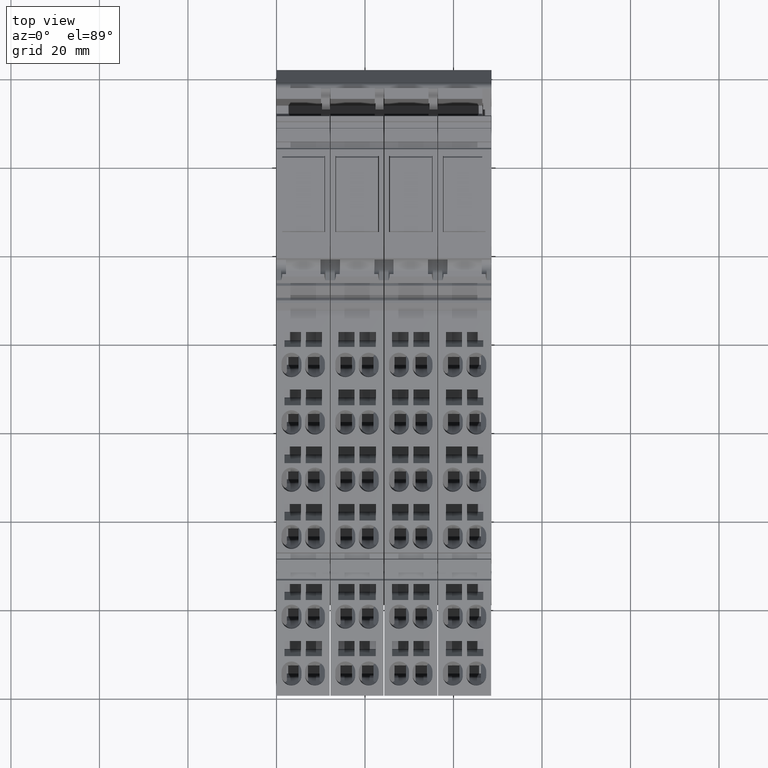
[diagram: clean part render]
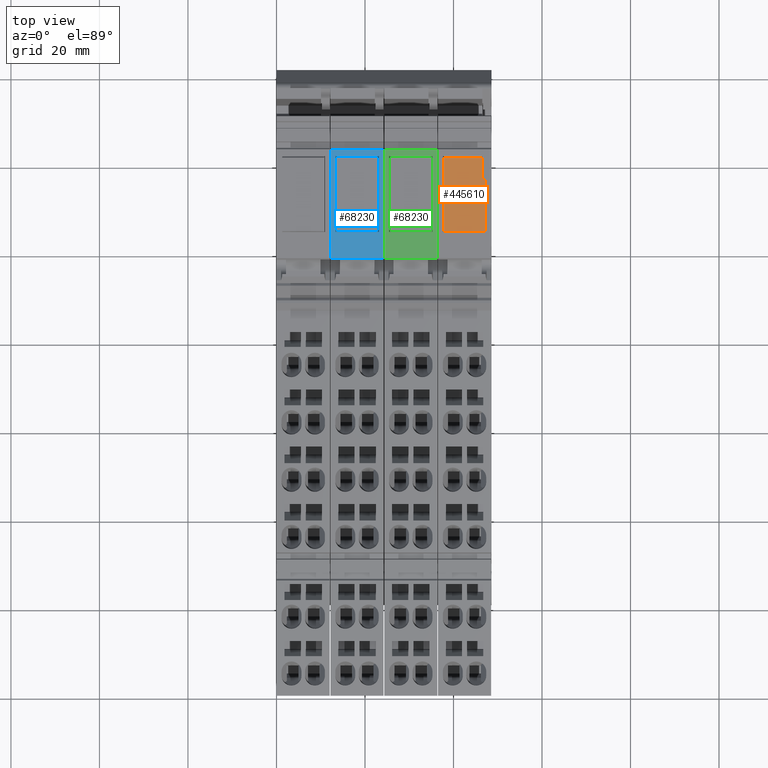
[diagram: same view with three faces highlighted in distinct colors, each labeled with its STEP entity id]
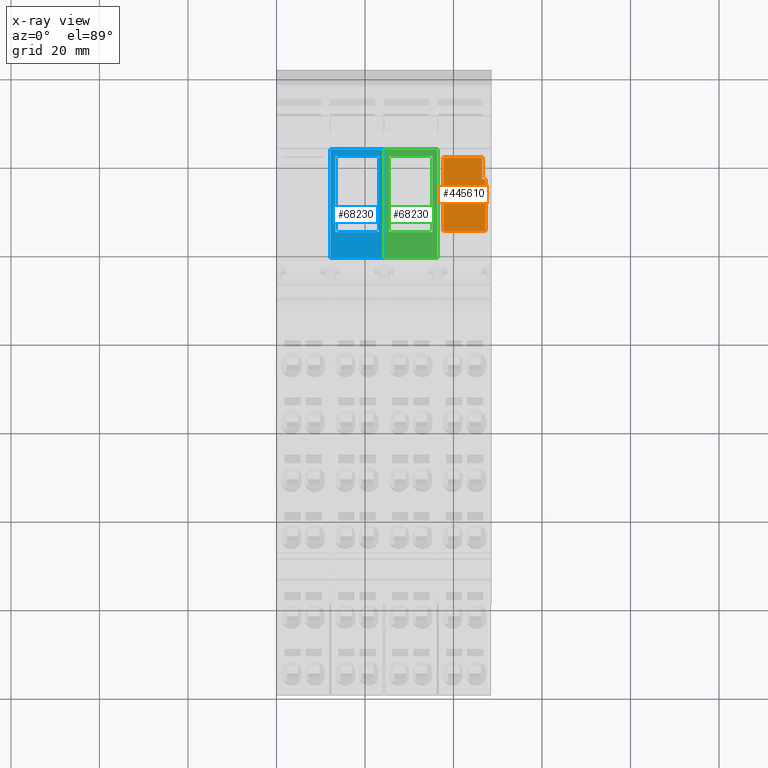
[diagram: x-ray of the same camera — body ghosted, the three highlighted faces saturated]
A machine part, top view with three faces highlighted in distinct colors.
The next image is the same camera in x-ray (body ghosted, the three faces saturated) — at least one of them is partly hidden behind the body in this view.
Their STEP definitions:

[orange] entity #445610 — the highlighted planar face has unit normal (0, 0, 1).
#444710=CARTESIAN_POINT('',(106.891351313916,84.4562740524357,
-9.59999999999789));
#444720=VERTEX_POINT('',#444710);
#444750=CARTESIAN_POINT('',(90.426738,84.4562740524359,-9.59999999999789
));
#444760=DIRECTION('',(-1.,1.05193631583234E-14,0.));
#444770=VECTOR('',#444760,1.);
#444780=LINE('',#444750,#444770);
#444790=CARTESIAN_POINT('',(90.2913513139157,84.4562740524359,
-9.59999999999789));
#444800=VERTEX_POINT('',#444790);
#444810=EDGE_CURVE('',#444720,#444800,#444780,.T.);
#445150=CARTESIAN_POINT('',(90.5147590000011,84.4562740524359,
-4.71143400000001));
#445160=DIRECTION('',(1.05193631583234E-14,1.,-0.));
#445170=DIRECTION('',(-1.,1.05193631583234E-14,0.));
#445180=AXIS2_PLACEMENT_3D('',#445150,#445160,#445170);
#445190=PLANE('',#445180);
#445200=ORIENTED_EDGE('',*,*,#444810,.T.);
#445210=CARTESIAN_POINT('',(106.891351313916,84.4562740524357,-0.25));
#445220=DIRECTION('',(0.,0.,1.));
#445230=VECTOR('',#445220,1.);
#445240=LINE('',#445210,#445230);
#445250=CARTESIAN_POINT('',(106.891351313916,84.4562740524357,
-0.850000000000001));
#445260=VERTEX_POINT('',#445250);
#445270=EDGE_CURVE('',#444720,#445260,#445240,.T.);
#445280=ORIENTED_EDGE('',*,*,#445270,.F.);
#445290=CARTESIAN_POINT('',(90.426738,84.4562740524359,
-0.850000000000001));
#445300=DIRECTION('',(1.,-1.05193631583234E-14,0.));
#445310=VECTOR('',#445300,1.);
#445320=LINE('',#445290,#445310);
#445330=CARTESIAN_POINT('',(101.991351313916,84.4562740524357,
-0.850000000000001));
#445340=VERTEX_POINT('',#445330);
#445350=EDGE_CURVE('',#445340,#445260,#445320,.T.);
#445360=ORIENTED_EDGE('',*,*,#445350,.T.);
#445370=CARTESIAN_POINT('',(101.991351313916,84.4562740524357,-0.25));
#445380=DIRECTION('',(0.,0.,-1.));
#445390=VECTOR('',#445380,1.);
#445400=LINE('',#445370,#445390);
#445410=CARTESIAN_POINT('',(101.991351313916,84.4562740524357,
-0.0999999999999872));
#445420=VERTEX_POINT('',#445410);
#445430=EDGE_CURVE('',#445420,#445340,#445400,.T.);
#445440=ORIENTED_EDGE('',*,*,#445430,.T.);
#445450=CARTESIAN_POINT('',(90.426738,84.4562740524359,
-0.0999999999999872));
#445460=DIRECTION('',(1.,-1.05193631583234E-14,0.));
#445470=VECTOR('',#445460,1.);
#445480=LINE('',#445450,#445470);
#445490=CARTESIAN_POINT('',(90.2913513139157,84.4562740524359,
-0.0999999999999872));
#445500=VERTEX_POINT('',#445490);
#445510=EDGE_CURVE('',#445500,#445420,#445480,.T.);
#445520=ORIENTED_EDGE('',*,*,#445510,.T.);
#445530=CARTESIAN_POINT('',(90.2913513139157,84.4562740524359,-0.25));
#445540=DIRECTION('',(0.,0.,-1.));
#445550=VECTOR('',#445540,1.);
#445560=LINE('',#445530,#445550);
#445570=EDGE_CURVE('',#445500,#444800,#445560,.T.);
#445580=ORIENTED_EDGE('',*,*,#445570,.F.);
#445590=EDGE_LOOP('',(#445580,#445520,#445440,#445360,#445280,#445200));
#445600=FACE_OUTER_BOUND('',#445590,.T.);
#445610=ADVANCED_FACE('',(#445600),#445190,.T.);

[blue] entity #68230 — the highlighted planar face has unit normal (0, 0, 1).
#2620=CARTESIAN_POINT('',(110.934443106477,84.4411135152833,
-47.4250000000002));
#2630=VERTEX_POINT('',#2620);
#2660=CARTESIAN_POINT('',(-0.345653967710078,84.441113515265,
-47.4250000000002));
#2670=DIRECTION('',(-1.,-1.64895874732451E-13,0.));
#2680=VECTOR('',#2670,1.);
#2690=LINE('',#2660,#2680);
#2700=CARTESIAN_POINT('',(86.3391365011984,84.4411135152793,
-47.4250000000002));
#2710=VERTEX_POINT('',#2700);
#2720=EDGE_CURVE('',#2630,#2710,#2690,.T.);
#7630=CARTESIAN_POINT('',(86.3391365011984,84.4411135152793,
-35.4250000000002));
#7640=VERTEX_POINT('',#7630);
#7670=CARTESIAN_POINT('',(-0.345653967710078,84.441113515265,
-35.4250000000002));
#7680=DIRECTION('',(-1.,-1.64895874732451E-13,0.));
#7690=VECTOR('',#7680,1.);
#7700=LINE('',#7670,#7690);
#7710=CARTESIAN_POINT('',(110.934443106477,84.4411135152833,
-35.4250000000002));
#7720=VERTEX_POINT('',#7710);
#7730=EDGE_CURVE('',#7720,#7640,#7700,.T.);
#66960=CARTESIAN_POINT('',(92.2148097286273,84.4411135152803,
-36.5250000000003));
#66970=VERTEX_POINT('',#66960);
#67000=CARTESIAN_POINT('',(92.2148097286273,84.4411135152803,
-2.91322521661641E-13));
#67010=DIRECTION('',(0.,0.,-1.));
#67020=VECTOR('',#67010,1.);
#67030=LINE('',#67000,#67020);
#67040=CARTESIAN_POINT('',(92.2148097286273,84.4411135152803,
-46.3250000000003));
#67050=VERTEX_POINT('',#67040);
#67060=EDGE_CURVE('',#66970,#67050,#67030,.T.);
#67550=CARTESIAN_POINT('',(109.330631128013,84.4411135152831,
-36.5250000000003));
#67560=VERTEX_POINT('',#67550);
#67610=CARTESIAN_POINT('',(-0.345653967710078,84.441113515265,
-36.5250000000003));
#67620=DIRECTION('',(-1.,-1.64895874732451E-13,2.46519032881566E-32));
#67630=VECTOR('',#67620,1.);
#67640=LINE('',#67610,#67630);
#67650=EDGE_CURVE('',#67560,#66970,#67640,.T.);
#67840=CARTESIAN_POINT('',(109.755998673342,84.4411135152831,
-36.2750000000003));
#67850=DIRECTION('',(-1.64895874732451E-13,1.,0.));
#67860=DIRECTION('',(-1.,-1.64895874732451E-13,0.));
#67870=AXIS2_PLACEMENT_3D('',#67840,#67850,#67860);
#67880=PLANE('',#67870);
#67890=ORIENTED_EDGE('',*,*,#67060,.T.);
#67900=ORIENTED_EDGE('',*,*,#67650,.T.);
#67910=CARTESIAN_POINT('',(109.330631128013,84.4411135152831,
-2.8421709430404E-13));
#67920=DIRECTION('',(-2.46519032881566E-32,0.,-1.));
#67930=VECTOR('',#67920,1.);
#67940=LINE('',#67910,#67930);
#67950=CARTESIAN_POINT('',(109.330631128013,84.4411135152831,
-46.3250000000003));
#67960=VERTEX_POINT('',#67950);
#67970=EDGE_CURVE('',#67560,#67960,#67940,.T.);
#67980=ORIENTED_EDGE('',*,*,#67970,.F.);
#67990=CARTESIAN_POINT('',(-0.345653967710078,84.441113515265,
-46.3250000000003));
#68000=DIRECTION('',(-1.,-1.64895874732451E-13,0.));
#68010=VECTOR('',#68000,1.);
#68020=LINE('',#67990,#68010);
#68030=EDGE_CURVE('',#67960,#67050,#68020,.T.);
#68040=ORIENTED_EDGE('',*,*,#68030,.F.);
#68050=EDGE_LOOP('',(#68040,#67980,#67900,#67890));
#68060=FACE_BOUND('',#68050,.T.);
#68070=CARTESIAN_POINT('',(110.934443106477,84.4411135152833,
-2.8421709430404E-13));
#68080=DIRECTION('',(0.,0.,1.));
#68090=VECTOR('',#68080,1.);
#68100=LINE('',#68070,#68090);
#68110=EDGE_CURVE('',#2630,#7720,#68100,.T.);
#68120=ORIENTED_EDGE('',*,*,#68110,.F.);
#68130=ORIENTED_EDGE('',*,*,#7730,.F.);
#68140=CARTESIAN_POINT('',(86.3391365011984,84.4411135152793,
-2.8421709430404E-13));
#68150=DIRECTION('',(0.,0.,-1.));
#68160=VECTOR('',#68150,1.);
#68170=LINE('',#68140,#68160);
#68180=EDGE_CURVE('',#7640,#2710,#68170,.T.);
#68190=ORIENTED_EDGE('',*,*,#68180,.F.);
#68200=ORIENTED_EDGE('',*,*,#2720,.T.);
#68210=EDGE_LOOP('',(#68200,#68190,#68130,#68120));
#68220=FACE_OUTER_BOUND('',#68210,.T.);
#68230=ADVANCED_FACE('',(#68060,#68220),#67880,.T.);

[green] entity #68230 — the highlighted planar face has unit normal (0, 0, 1).
#2620=CARTESIAN_POINT('',(110.934443106477,84.4411135152833,
-47.4250000000002));
#2630=VERTEX_POINT('',#2620);
#2660=CARTESIAN_POINT('',(-0.345653967710078,84.441113515265,
-47.4250000000002));
#2670=DIRECTION('',(-1.,-1.64895874732451E-13,0.));
#2680=VECTOR('',#2670,1.);
#2690=LINE('',#2660,#2680);
#2700=CARTESIAN_POINT('',(86.3391365011984,84.4411135152793,
-47.4250000000002));
#2710=VERTEX_POINT('',#2700);
#2720=EDGE_CURVE('',#2630,#2710,#2690,.T.);
#7630=CARTESIAN_POINT('',(86.3391365011984,84.4411135152793,
-35.4250000000002));
#7640=VERTEX_POINT('',#7630);
#7670=CARTESIAN_POINT('',(-0.345653967710078,84.441113515265,
-35.4250000000002));
#7680=DIRECTION('',(-1.,-1.64895874732451E-13,0.));
#7690=VECTOR('',#7680,1.);
#7700=LINE('',#7670,#7690);
#7710=CARTESIAN_POINT('',(110.934443106477,84.4411135152833,
-35.4250000000002));
#7720=VERTEX_POINT('',#7710);
#7730=EDGE_CURVE('',#7720,#7640,#7700,.T.);
#66960=CARTESIAN_POINT('',(92.2148097286273,84.4411135152803,
-36.5250000000003));
#66970=VERTEX_POINT('',#66960);
#67000=CARTESIAN_POINT('',(92.2148097286273,84.4411135152803,
-2.91322521661641E-13));
#67010=DIRECTION('',(0.,0.,-1.));
#67020=VECTOR('',#67010,1.);
#67030=LINE('',#67000,#67020);
#67040=CARTESIAN_POINT('',(92.2148097286273,84.4411135152803,
-46.3250000000003));
#67050=VERTEX_POINT('',#67040);
#67060=EDGE_CURVE('',#66970,#67050,#67030,.T.);
#67550=CARTESIAN_POINT('',(109.330631128013,84.4411135152831,
-36.5250000000003));
#67560=VERTEX_POINT('',#67550);
#67610=CARTESIAN_POINT('',(-0.345653967710078,84.441113515265,
-36.5250000000003));
#67620=DIRECTION('',(-1.,-1.64895874732451E-13,2.46519032881566E-32));
#67630=VECTOR('',#67620,1.);
#67640=LINE('',#67610,#67630);
#67650=EDGE_CURVE('',#67560,#66970,#67640,.T.);
#67840=CARTESIAN_POINT('',(109.755998673342,84.4411135152831,
-36.2750000000003));
#67850=DIRECTION('',(-1.64895874732451E-13,1.,0.));
#67860=DIRECTION('',(-1.,-1.64895874732451E-13,0.));
#67870=AXIS2_PLACEMENT_3D('',#67840,#67850,#67860);
#67880=PLANE('',#67870);
#67890=ORIENTED_EDGE('',*,*,#67060,.T.);
#67900=ORIENTED_EDGE('',*,*,#67650,.T.);
#67910=CARTESIAN_POINT('',(109.330631128013,84.4411135152831,
-2.8421709430404E-13));
#67920=DIRECTION('',(-2.46519032881566E-32,0.,-1.));
#67930=VECTOR('',#67920,1.);
#67940=LINE('',#67910,#67930);
#67950=CARTESIAN_POINT('',(109.330631128013,84.4411135152831,
-46.3250000000003));
#67960=VERTEX_POINT('',#67950);
#67970=EDGE_CURVE('',#67560,#67960,#67940,.T.);
#67980=ORIENTED_EDGE('',*,*,#67970,.F.);
#67990=CARTESIAN_POINT('',(-0.345653967710078,84.441113515265,
-46.3250000000003));
#68000=DIRECTION('',(-1.,-1.64895874732451E-13,0.));
#68010=VECTOR('',#68000,1.);
#68020=LINE('',#67990,#68010);
#68030=EDGE_CURVE('',#67960,#67050,#68020,.T.);
#68040=ORIENTED_EDGE('',*,*,#68030,.F.);
#68050=EDGE_LOOP('',(#68040,#67980,#67900,#67890));
#68060=FACE_BOUND('',#68050,.T.);
#68070=CARTESIAN_POINT('',(110.934443106477,84.4411135152833,
-2.8421709430404E-13));
#68080=DIRECTION('',(0.,0.,1.));
#68090=VECTOR('',#68080,1.);
#68100=LINE('',#68070,#68090);
#68110=EDGE_CURVE('',#2630,#7720,#68100,.T.);
#68120=ORIENTED_EDGE('',*,*,#68110,.F.);
#68130=ORIENTED_EDGE('',*,*,#7730,.F.);
#68140=CARTESIAN_POINT('',(86.3391365011984,84.4411135152793,
-2.8421709430404E-13));
#68150=DIRECTION('',(0.,0.,-1.));
#68160=VECTOR('',#68150,1.);
#68170=LINE('',#68140,#68160);
#68180=EDGE_CURVE('',#7640,#2710,#68170,.T.);
#68190=ORIENTED_EDGE('',*,*,#68180,.F.);
#68200=ORIENTED_EDGE('',*,*,#2720,.T.);
#68210=EDGE_LOOP('',(#68200,#68190,#68130,#68120));
#68220=FACE_OUTER_BOUND('',#68210,.T.);
#68230=ADVANCED_FACE('',(#68060,#68220),#67880,.T.);